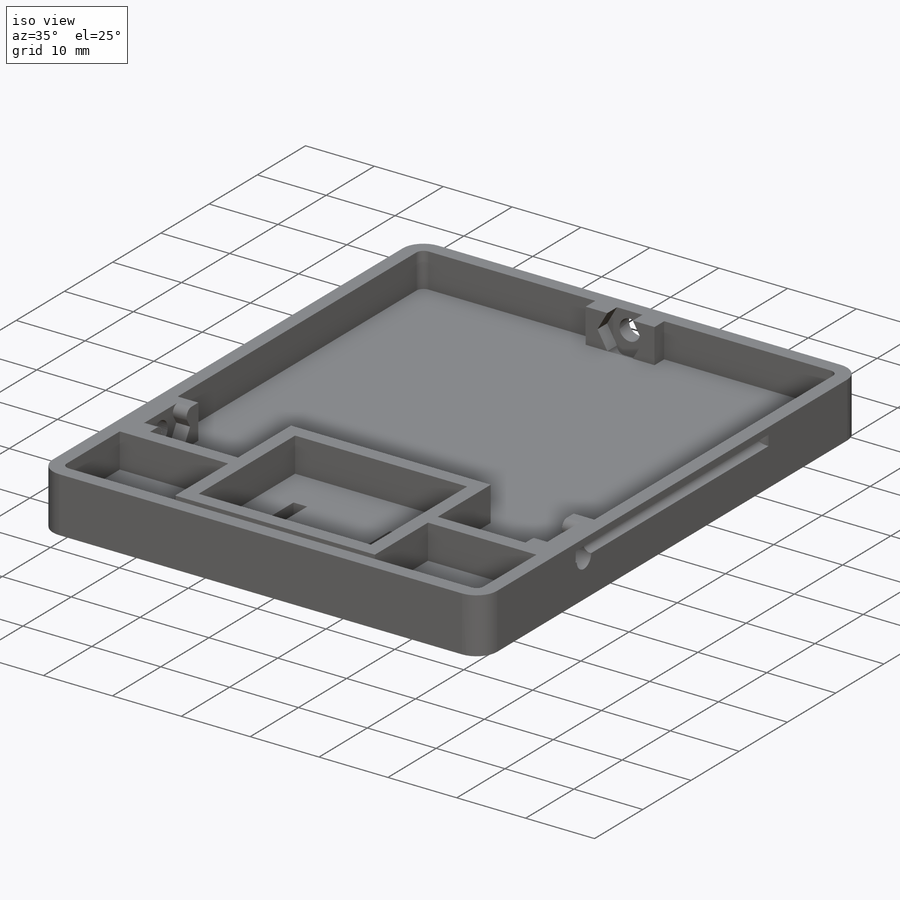
[diagram: iso view]
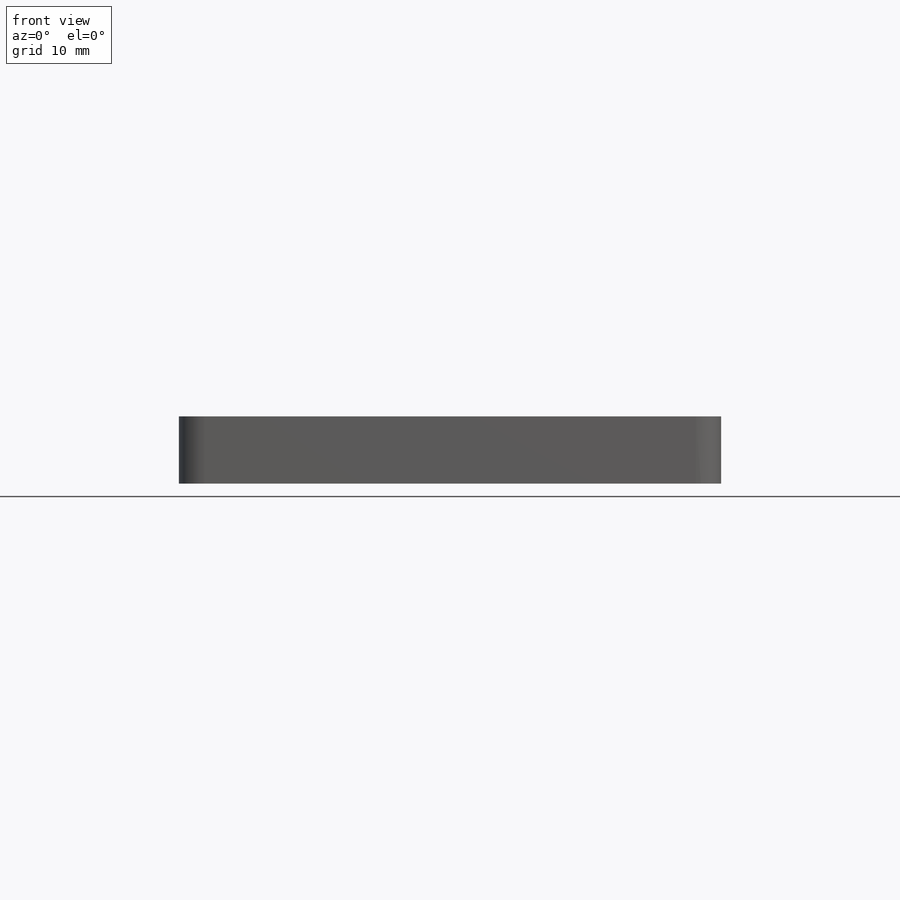
[diagram: front view]
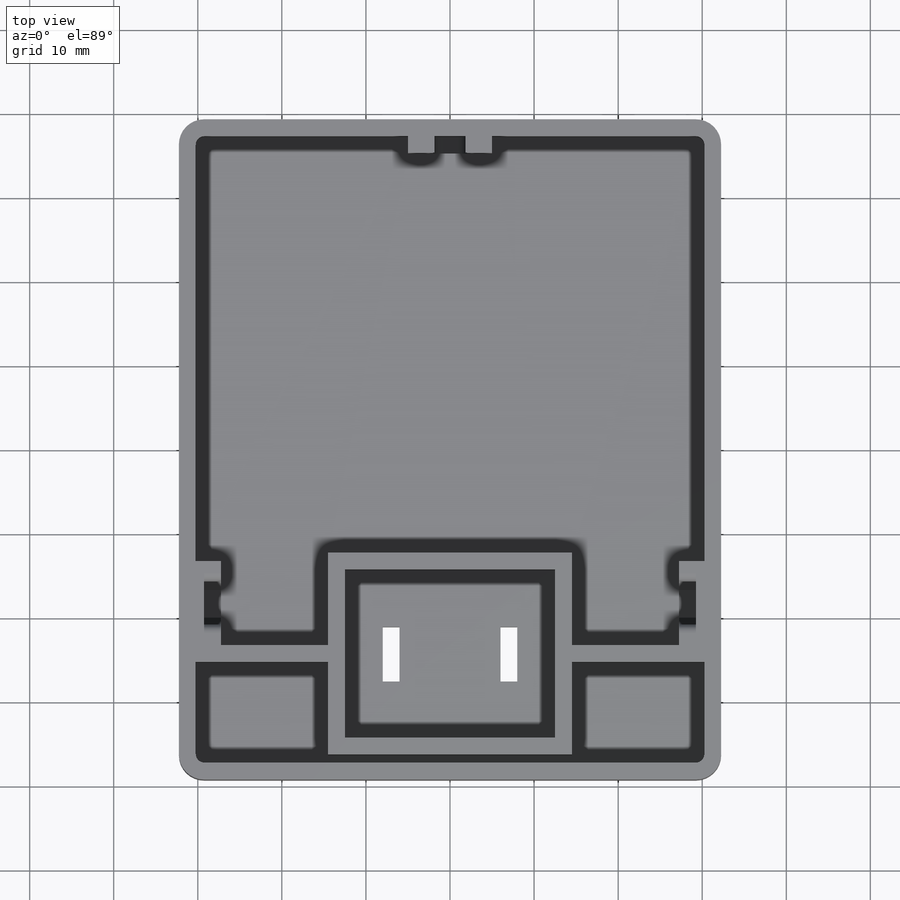
[diagram: top view]
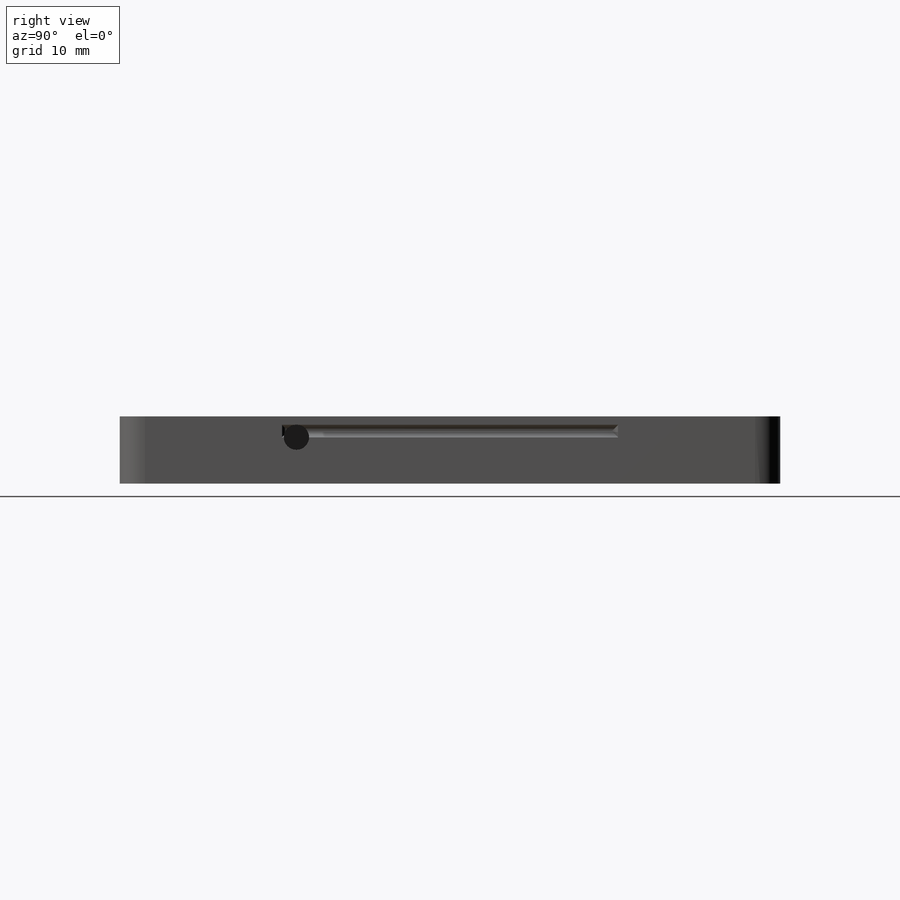
[diagram: right view]
SOLIDWORKS PART (.sldprt)
format: sldprt  version: not decoded by parser v0  size: 494,592 bytes
history: native  units: mm
features: sketch x12, extrude x6, cut_extrude x6, mirror x4, fillet x3, material x1 (+11 scaffold rows collapsed)
feature tree (43):
  scaffold x11  (default folders/planes/origin — collapsed)
  material  "Material <not specified>"
  sketch  "Sketch1"  dims[D3=3.0mm D1=64.5mm D2=78.55mm]
  extrude  "Boss-Extrude1"  Depth=3mm
  sketch  "Sketch2"  dims[c1.D1=6.5mm c1.D2=2.0mm c1.D3=7.0mm c1.D4=~11.904176mm c2.D3=7.0mm c2.D4=15.0mm]
  cut_extrude  "Cut-Extrude1"  [1 undecoded]
  mirror  "Mirror1"
  sketch  "Sketch3"  dims[D1=25.0mm D2=20.0mm D3=2.0mm]
  extrude  "Boss-Extrude2"  Depth=5mm
  sketch  "Sketch4"  dims[c1.D6=~1.03571mm c1.D2=2.0mm c1.D3=2.0mm c1.D4=2.0mm c1.D5=2.0mm c1.D1=0.0mm c2.D2=2.0mm]
  extrude  "Boss-Extrude3"  Depth=5mm
  sketch  "Sketch5"  dims[D1=2.0mm]
  extrude  "Boss-Extrude4"  Depth=5mm
  mirror  "Mirror2"
  sketch  "Sketch6"  dims[D1=40.0mm D2=1.5mm D3=1.0mm]
  cut_extrude  "Cut-Extrude2"  Depth=1mm
  fillet  "Fillet1"  Radius=0.75mm
  mirror  "Mirror5"
  sketch  "Sketch9"  dims[D1=3.0mm D2=10.0mm]
  extrude  "Boss-Extrude5"  [1 undecoded]
  sketch  "Sketch10"  dims[D2=3.0mm D1=5.7mm]
  cut_extrude  "Cut-Extrude5"  [1 undecoded]
  sketch  "Sketch11"  dims[D1=5.7mm]
  cut_extrude  "Cut-Extrude6"  Depth=2mm
  fillet  "Fillet3"  Radius=1mm
  mirror  "Mirror6"
  sketch  "Sketch12"  dims[D1=3.0mm D2=5.5mm]
  cut_extrude  "Cut-Extrude7"  [1 undecoded]
  sketch  "Sketch13"  dims[D1=5.7mm D2=10.0mm]
  extrude  "Boss-Extrude6"  Depth=2mm
  sketch  "Sketch14"
  cut_extrude  "Cut-Extrude8"  Depth=1mm
  fillet  "Fillet4"  Radius=1mm
decode coverage: 22 of 31 modeling features carry decoded parameters
note: ~ marks probable driven/reference dimensions
note: 4 parameter values undecoded
summary: no parameter record found for 4 features
note: suppression state not decoded; provenance and decode notes live in map.json
